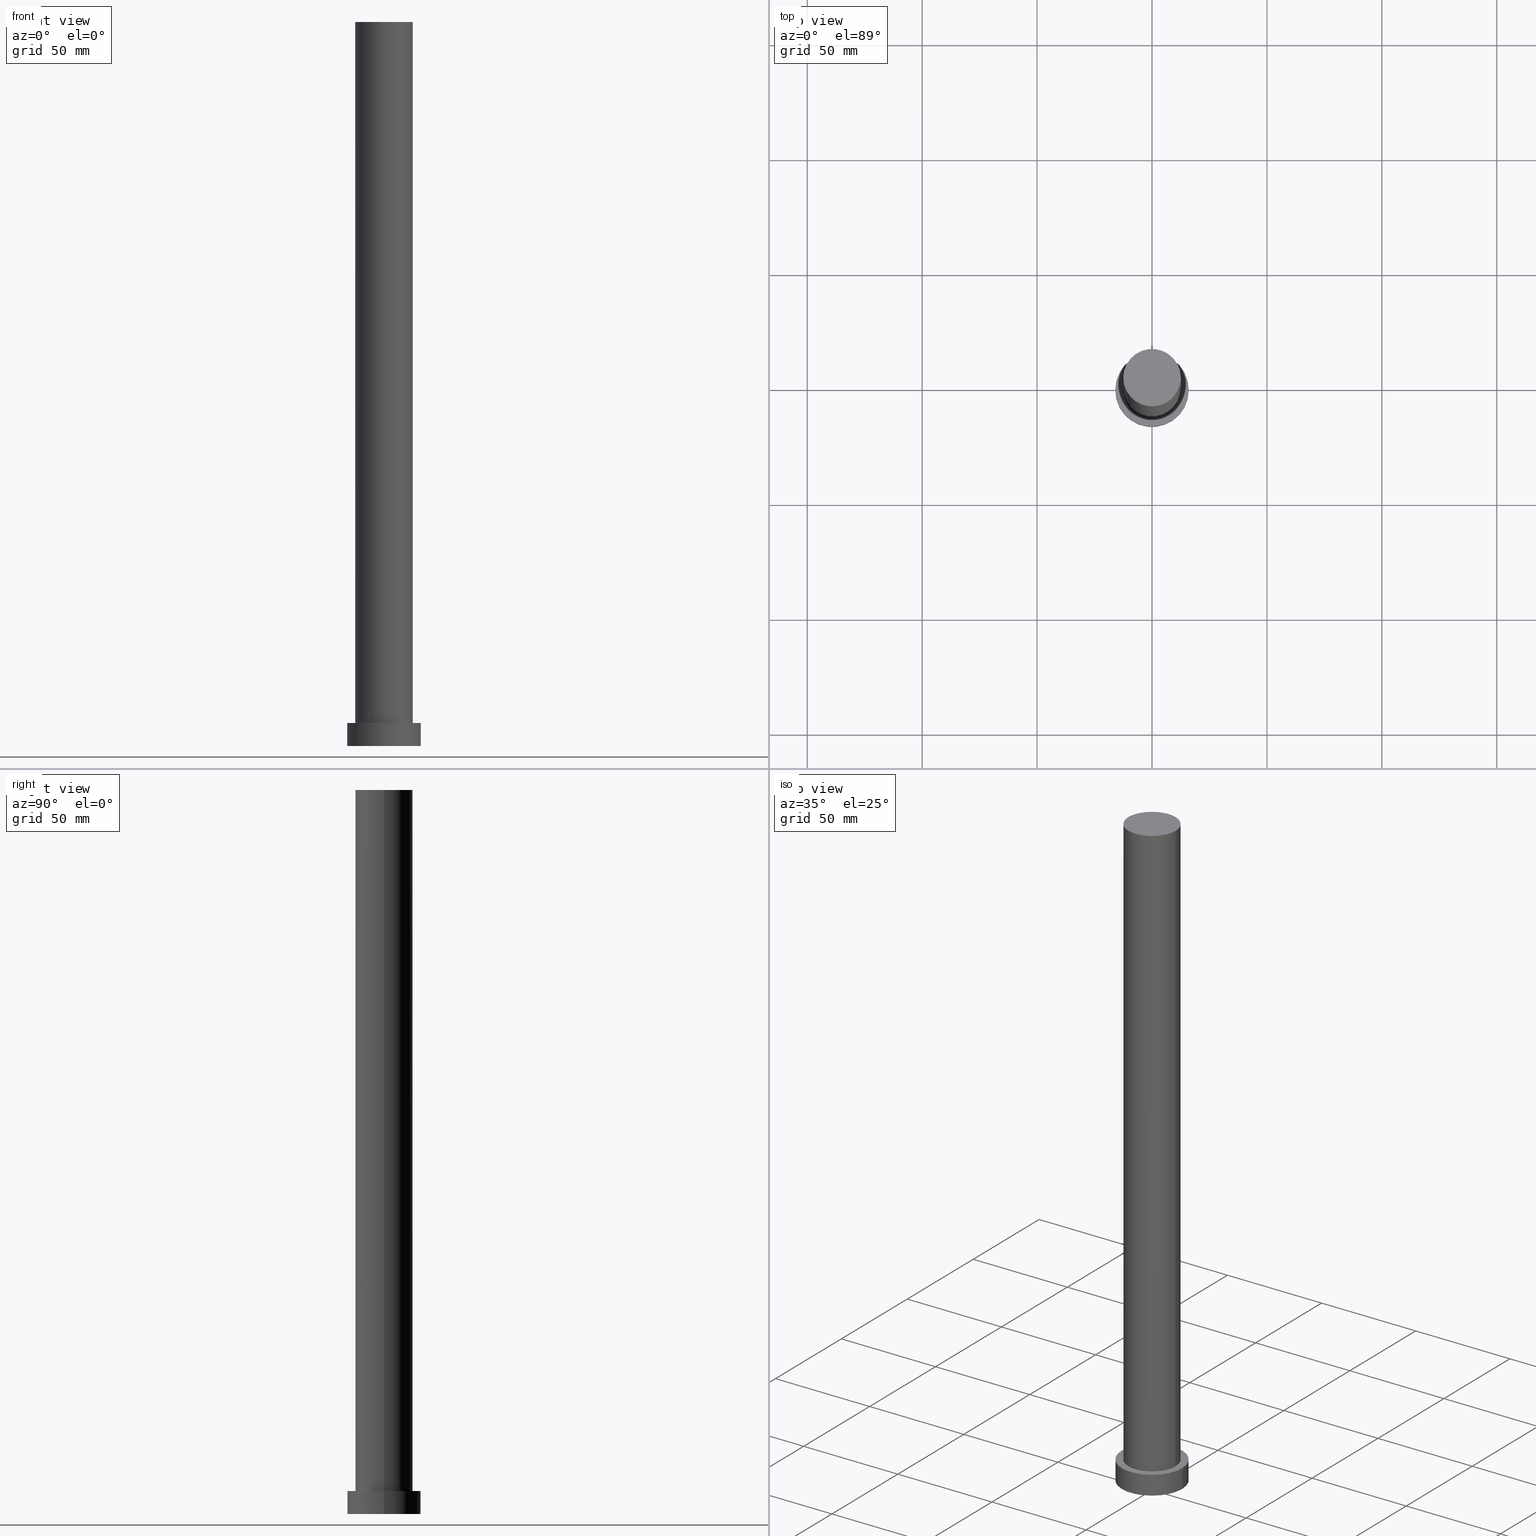
[diagram: canonical four-view strip — front | top / right | iso, engineering-drawing reading convention]
A machine part, canonical four-view strip (front | top / right | iso — engineering-drawing reading convention). The complete STEP part file that produces these views, byte-faithful:
ISO-10303-21;
HEADER;
FILE_DESCRIPTION (( 'STEP AP203' ),
    '1' );
FILE_NAME ('2f4d.STEP',
    '2023-02-13T07:32:04',
    ( '' ),
    ( '' ),
    'SwSTEP 2.0',
    'SolidWorks 2019',
    '' );
FILE_SCHEMA (( 'CONFIG_CONTROL_DESIGN' ));
ENDSEC;

DATA;
#1 = DIRECTION ( 'NONE',  ( 1.000000000000000000, 0.000000000000000000, 0.000000000000000000 ) ) ;
#2 = CALENDAR_DATE ( 2023, 13, 2 ) ;
#3 = ORGANIZATION ( 'NEUR�EN�', 'NEUR�EN�', '' ) ;
#4 = CARTESIAN_POINT ( 'NONE',  ( 16.00000000000000000, 1.959434878635765131E-15, 0.000000000000000000 ) ) ;
#5 = APPROVAL_ROLE ( '' ) ;
#6 = UNCERTAINTY_MEASURE_WITH_UNIT (LENGTH_MEASURE( 1.000000000000000082E-05 ), #196, 'distance_accuracy_value', 'NONE');
#7 = DIRECTION ( 'NONE',  ( 0.000000000000000000, 0.000000000000000000, 1.000000000000000000 ) ) ;
#8 = CARTESIAN_POINT ( 'NONE',  ( 0.000000000000000000, 0.000000000000000000, 10.00000000000000000 ) ) ;
#9 = CC_DESIGN_DATE_AND_TIME_ASSIGNMENT ( #94, #69, ( #47 ) ) ;
#10 = PLANE ( 'NONE',  #63 ) ;
#11 = COORDINATED_UNIVERSAL_TIME_OFFSET ( 1, 0, .AHEAD. ) ;
#12 = CYLINDRICAL_SURFACE ( 'NONE', #75, 16.00000000000000000 ) ;
#13 = FACE_OUTER_BOUND ( 'NONE', #234, .T. ) ;
#14 = VERTEX_POINT ( 'NONE', #4 ) ;
#15 = ORIENTED_EDGE ( 'NONE', *, *, #81, .F. ) ;
#16 = VERTEX_POINT ( 'NONE', #189 ) ;
#17 = MANIFOLD_SOLID_BREP ( 'P�idat vysunut�m3', #202 ) ;
#18 = AXIS2_PLACEMENT_3D ( 'NONE', #46, #192, #209 ) ;
#19 = PRODUCT_DEFINITION_SHAPE ( 'NONE', 'NONE',  #47 ) ;
#20 = APPROVAL ( #154, 'NEUR�EN�' ) ;
#21 = CARTESIAN_POINT ( 'NONE',  ( 16.00000000000000000, 1.959434878635765131E-15, 10.00000000000000000 ) ) ;
#22 = PERSON_AND_ORGANIZATION ( #114, #3 ) ;
#23 = CARTESIAN_POINT ( 'NONE',  ( 0.000000000000000000, 0.000000000000000000, 10.00000000000000000 ) ) ;
#24 = AXIS2_PLACEMENT_3D ( 'NONE', #141, #170, #210 ) ;
#25 = PERSON_AND_ORGANIZATION ( #114, #3 ) ;
#26 = DIRECTION ( 'NONE',  ( -0.000000000000000000, -0.000000000000000000, -1.000000000000000000 ) ) ;
#27 = CARTESIAN_POINT ( 'NONE',  ( 12.50000000000000000, 1.530808498934191521E-15, 315.0000000000000000 ) ) ;
#28 = CARTESIAN_POINT ( 'NONE',  ( -12.50000000000000000, 0.000000000000000000, 315.0000000000000000 ) ) ;
#29 = ADVANCED_FACE ( 'NONE', ( #244 ), #168, .T. ) ;
#30 = DIRECTION ( 'NONE',  ( 0.000000000000000000, 0.000000000000000000, 1.000000000000000000 ) ) ;
#31 = PRODUCT_DEFINITION_FORMATION_WITH_SPECIFIED_SOURCE ( 'LIBOVOLN�', '', #206, .NOT_KNOWN. ) ;
#32 = CIRCLE ( 'NONE', #128, 12.50000000000000000 ) ;
#33 = APPROVAL_STATUS ( 'not_yet_approved' ) ;
#34 = VECTOR ( 'NONE', #58, 1000.000000000000000 ) ;
#35 = ORIENTED_EDGE ( 'NONE', *, *, #74, .F. ) ;
#36 = ORIENTED_EDGE ( 'NONE', *, *, #101, .T. ) ;
#37 = ORIENTED_EDGE ( 'NONE', *, *, #150, .T. ) ;
#38 = AXIS2_PLACEMENT_3D ( 'NONE', #140, #53, #1 ) ;
#39 = EDGE_CURVE ( 'NONE', #183, #14, #76, .T. ) ;
#40 = CC_DESIGN_PERSON_AND_ORGANIZATION_ASSIGNMENT ( #112, #169, ( #31 ) ) ;
#41 = VERTEX_POINT ( 'NONE', #73 ) ;
#42 = AXIS2_PLACEMENT_3D ( 'NONE', #56, #143, #232 ) ;
#43 = CC_DESIGN_APPROVAL ( #133, ( #109 ) ) ;
#44 = DIRECTION ( 'NONE',  ( 1.000000000000000000, 0.000000000000000000, 0.000000000000000000 ) ) ;
#45 = CALENDAR_DATE ( 2023, 13, 2 ) ;
#46 = CARTESIAN_POINT ( 'NONE',  ( 0.000000000000000000, 0.000000000000000000, 10.00000000000000000 ) ) ;
#47 = PRODUCT_DEFINITION ( 'NEZN�M�', '', #31, #212 ) ;
#48 = PERSON_AND_ORGANIZATION_ROLE ( 'design_supplier' ) ;
#49 = FACE_OUTER_BOUND ( 'NONE', #134, .T. ) ;
#50 = ADVANCED_FACE ( 'NONE', ( #167 ), #152, .F. ) ;
#51 = SECURITY_CLASSIFICATION_LEVEL ( 'unclassified' ) ;
#52 = LOCAL_TIME ( 8, 32, 4.000000000000000000, #118 ) ;
#53 = DIRECTION ( 'NONE',  ( 0.000000000000000000, 0.000000000000000000, 1.000000000000000000 ) ) ;
#54 = EDGE_CURVE ( 'NONE', #83, #198, #113, .T. ) ;
#55 = CARTESIAN_POINT ( 'NONE',  ( -16.00000000000000000, 0.000000000000000000, 10.00000000000000000 ) ) ;
#56 = CARTESIAN_POINT ( 'NONE',  ( 0.000000000000000000, 0.000000000000000000, 10.00000000000000000 ) ) ;
#57 = APPLICATION_PROTOCOL_DEFINITION ( 'international standard', 'config_control_design', 1994, #120 ) ;
#58 = DIRECTION ( 'NONE',  ( -0.000000000000000000, -0.000000000000000000, -1.000000000000000000 ) ) ;
#59 = ADVANCED_FACE ( 'NONE', ( #172 ), #91, .T. ) ;
#60 = CARTESIAN_POINT ( 'NONE',  ( 0.000000000000000000, 0.000000000000000000, 315.0000000000000000 ) ) ;
#61 = EDGE_LOOP ( 'NONE', ( #250, #15, #204, #253 ) ) ;
#62 = CC_DESIGN_PERSON_AND_ORGANIZATION_ASSIGNMENT ( #156, #135, ( #47 ) ) ;
#63 = AXIS2_PLACEMENT_3D ( 'NONE', #60, #97, #142 ) ;
#64 = AXIS2_PLACEMENT_3D ( 'NONE', #213, #228, #238 ) ;
#65 = ORIENTED_EDGE ( 'NONE', *, *, #103, .F. ) ;
#66 = DIRECTION ( 'NONE',  ( 0.000000000000000000, 0.000000000000000000, 1.000000000000000000 ) ) ;
#67 = LOCAL_TIME ( 8, 32, 4.000000000000000000, #224 ) ;
#68 = CC_DESIGN_DATE_AND_TIME_ASSIGNMENT ( #173, #219, ( #109 ) ) ;
#69 = DATE_TIME_ROLE ( 'creation_date' ) ;
#70 = DIRECTION ( 'NONE',  ( 1.000000000000000000, 0.000000000000000000, 0.000000000000000000 ) ) ;
#71 = DATE_AND_TIME ( #138, #251 ) ;
#72 = DIRECTION ( 'NONE',  ( 0.000000000000000000, 0.000000000000000000, 1.000000000000000000 ) ) ;
#73 = CARTESIAN_POINT ( 'NONE',  ( -12.50000000000000000, 0.000000000000000000, 315.0000000000000000 ) ) ;
#74 = EDGE_CURVE ( 'NONE', #41, #87, #221, .T. ) ;
#75 = AXIS2_PLACEMENT_3D ( 'NONE', #230, #182, #121 ) ;
#76 = LINE ( 'NONE', #21, #179 ) ;
#77 = CARTESIAN_POINT ( 'NONE',  ( 12.50000000000000000, 1.530808498934191521E-15, 10.00000000000000000 ) ) ;
#78 = FACE_OUTER_BOUND ( 'NONE', #61, .T. ) ;
#79 = PRODUCT_RELATED_PRODUCT_CATEGORY ( 'detail', '', ( #206 ) ) ;
#80 = APPROVAL_PERSON_ORGANIZATION ( #215, #89, #125 ) ;
#81 = EDGE_CURVE ( 'NONE', #83, #183, #148, .T. ) ;
#82 =( NAMED_UNIT ( * ) SI_UNIT ( $, .STERADIAN. ) SOLID_ANGLE_UNIT ( ) );
#83 = VERTEX_POINT ( 'NONE', #55 ) ;
#84 = AXIS2_PLACEMENT_3D ( 'NONE', #174, #242, #240 ) ;
#85 = EDGE_LOOP ( 'NONE', ( #236, #36, #165, #218 ) ) ;
#86 = APPROVAL_PERSON_ORGANIZATION ( #190, #133, #5 ) ;
#87 = VERTEX_POINT ( 'NONE', #222 ) ;
#88 = DIRECTION ( 'NONE',  ( 1.000000000000000000, 0.000000000000000000, -0.000000000000000000 ) ) ;
#89 = APPROVAL ( #33, 'NEUR�EN�' ) ;
#90 = PERSON_AND_ORGANIZATION_ROLE ( 'classification_officer' ) ;
#91 = CYLINDRICAL_SURFACE ( 'NONE', #84, 12.50000000000000000 ) ;
#92 = COORDINATED_UNIVERSAL_TIME_OFFSET ( 1, 0, .AHEAD. ) ;
#93 = DIRECTION ( 'NONE',  ( -0.000000000000000000, -0.000000000000000000, -1.000000000000000000 ) ) ;
#94 = DATE_AND_TIME ( #2, #175 ) ;
#95 = DIRECTION ( 'NONE',  ( 0.000000000000000000, 0.000000000000000000, 1.000000000000000000 ) ) ;
#96 = APPLICATION_PROTOCOL_DEFINITION ( 'international standard', 'config_control_design', 1994, #124 ) ;
#97 = DIRECTION ( 'NONE',  ( 0.000000000000000000, 0.000000000000000000, 1.000000000000000000 ) ) ;
#98 = CC_DESIGN_PERSON_AND_ORGANIZATION_ASSIGNMENT ( #246, #229, ( #206 ) ) ;
#99 = CARTESIAN_POINT ( 'NONE',  ( -16.00000000000000000, 0.000000000000000000, 0.000000000000000000 ) ) ;
#100 = CC_DESIGN_APPROVAL ( #20, ( #31 ) ) ;
#101 = EDGE_CURVE ( 'NONE', #87, #203, #111, .T. ) ;
#102 = CARTESIAN_POINT ( 'NONE',  ( 0.000000000000000000, 0.000000000000000000, 0.000000000000000000 ) ) ;
#103 = EDGE_CURVE ( 'NONE', #16, #203, #32, .T. ) ;
#104 = CC_DESIGN_PERSON_AND_ORGANIZATION_ASSIGNMENT ( #22, #48, ( #31 ) ) ;
#105 = ORIENTED_EDGE ( 'NONE', *, *, #101, .F. ) ;
#106 = EDGE_LOOP ( 'NONE', ( #105, #35, #107, #252 ) ) ;
#107 = ORIENTED_EDGE ( 'NONE', *, *, #255, .T. ) ;
#108 = EDGE_CURVE ( 'NONE', #14, #198, #132, .T. ) ;
#109 = SECURITY_CLASSIFICATION ( '', '', #51 ) ;
#110 = APPROVAL_DATE_TIME ( #208, #20 ) ;
#111 = LINE ( 'NONE', #27, #123 ) ;
#112 = PERSON_AND_ORGANIZATION ( #114, #3 ) ;
#113 = LINE ( 'NONE', #223, #211 ) ;
#114 = PERSON ( 'NEUR�EN�', 'NEUR�EN�', 'NEUR�EN�', ('NEUR�EN�'), ('NEUR�EN�'), ('NEUR�EN�') ) ;
#115 = PERSON_AND_ORGANIZATION ( #114, #3 ) ;
#116 = CARTESIAN_POINT ( 'NONE',  ( 0.000000000000000000, 0.000000000000000000, 315.0000000000000000 ) ) ;
#117 = CIRCLE ( 'NONE', #247, 16.00000000000000000 ) ;
#118 = COORDINATED_UNIVERSAL_TIME_OFFSET ( 1, 0, .AHEAD. ) ;
#119 = DIRECTION ( 'NONE',  ( 0.000000000000000000, 0.000000000000000000, 1.000000000000000000 ) ) ;
#120 = APPLICATION_CONTEXT ( 'configuration controlled 3d designs of mechanical parts and assemblies' ) ;
#121 = DIRECTION ( 'NONE',  ( -1.000000000000000000, 0.000000000000000000, 0.000000000000000000 ) ) ;
#122 = AXIS2_PLACEMENT_3D ( 'NONE', #116, #72, #137 ) ;
#123 = VECTOR ( 'NONE', #191, 1000.000000000000000 ) ;
#124 = APPLICATION_CONTEXT ( 'configuration controlled 3d designs of mechanical parts and assemblies' ) ;
#125 = APPROVAL_ROLE ( '' ) ;
#126 = EDGE_LOOP ( 'NONE', ( #254, #186, #217, #129 ) ) ;
#127 = ORIENTED_EDGE ( 'NONE', *, *, #149, .F. ) ;
#128 = AXIS2_PLACEMENT_3D ( 'NONE', #23, #159, #70 ) ;
#129 = ORIENTED_EDGE ( 'NONE', *, *, #54, .F. ) ;
#130 = ORIENTED_EDGE ( 'NONE', *, *, #81, .T. ) ;
#131 = CIRCLE ( 'NONE', #122, 12.50000000000000000 ) ;
#132 = CIRCLE ( 'NONE', #38, 16.00000000000000000 ) ;
#133 = APPROVAL ( #158, 'NEUR�EN�' ) ;
#134 = EDGE_LOOP ( 'NONE', ( #227, #200 ) ) ;
#135 = PERSON_AND_ORGANIZATION_ROLE ( 'creator' ) ;
#136 = AXIS2_PLACEMENT_3D ( 'NONE', #243, #66, #187 ) ;
#137 = DIRECTION ( 'NONE',  ( 1.000000000000000000, 0.000000000000000000, 0.000000000000000000 ) ) ;
#138 = CALENDAR_DATE ( 2023, 13, 2 ) ;
#139 = COORDINATED_UNIVERSAL_TIME_OFFSET ( 1, 0, .AHEAD. ) ;
#140 = CARTESIAN_POINT ( 'NONE',  ( 0.000000000000000000, 0.000000000000000000, 0.000000000000000000 ) ) ;
#141 = CARTESIAN_POINT ( 'NONE',  ( 0.000000000000000000, 0.000000000000000000, 315.0000000000000000 ) ) ;
#142 = DIRECTION ( 'NONE',  ( 1.000000000000000000, 0.000000000000000000, -0.000000000000000000 ) ) ;
#143 = DIRECTION ( 'NONE',  ( -0.000000000000000000, -0.000000000000000000, -1.000000000000000000 ) ) ;
#144 = FACE_OUTER_BOUND ( 'NONE', #126, .T. ) ;
#145 = EDGE_LOOP ( 'NONE', ( #65, #164 ) ) ;
#146 = EDGE_LOOP ( 'NONE', ( #127, #235 ) ) ;
#147 = CC_DESIGN_APPROVAL ( #89, ( #47 ) ) ;
#148 = CIRCLE ( 'NONE', #136, 16.00000000000000000 ) ;
#149 = EDGE_CURVE ( 'NONE', #198, #14, #117, .T. ) ;
#150 = EDGE_CURVE ( 'NONE', #183, #83, #181, .T. ) ;
#151 = CALENDAR_DATE ( 2023, 13, 2 ) ;
#152 = PLANE ( 'NONE',  #237 ) ;
#153 = AXIS2_PLACEMENT_3D ( 'NONE', #102, #162, #214 ) ;
#154 = APPROVAL_STATUS ( 'not_yet_approved' ) ;
#155 = CARTESIAN_POINT ( 'NONE',  ( 0.000000000000000000, 0.000000000000000000, 0.000000000000000000 ) ) ;
#156 = PERSON_AND_ORGANIZATION ( #114, #3 ) ;
#157 = CARTESIAN_POINT ( 'NONE',  ( 0.000000000000000000, 0.000000000000000000, 10.00000000000000000 ) ) ;
#158 = APPROVAL_STATUS ( 'not_yet_approved' ) ;
#159 = DIRECTION ( 'NONE',  ( 0.000000000000000000, 0.000000000000000000, 1.000000000000000000 ) ) ;
#160 = CARTESIAN_POINT ( 'NONE',  ( 0.000000000000000000, 0.000000000000000000, 0.000000000000000000 ) ) ;
#161 =( NAMED_UNIT ( * ) PLANE_ANGLE_UNIT ( ) SI_UNIT ( $, .RADIAN. ) );
#162 = DIRECTION ( 'NONE',  ( 0.000000000000000000, 0.000000000000000000, 1.000000000000000000 ) ) ;
#163 = PLANE ( 'NONE',  #201 ) ;
#164 = ORIENTED_EDGE ( 'NONE', *, *, #177, .F. ) ;
#165 = ORIENTED_EDGE ( 'NONE', *, *, #177, .T. ) ;
#166 = EDGE_CURVE ( 'NONE', #87, #41, #131, .T. ) ;
#167 = FACE_OUTER_BOUND ( 'NONE', #146, .T. ) ;
#168 = CYLINDRICAL_SURFACE ( 'NONE', #24, 12.50000000000000000 ) ;
#169 = PERSON_AND_ORGANIZATION_ROLE ( 'creator' ) ;
#170 = DIRECTION ( 'NONE',  ( -0.000000000000000000, -0.000000000000000000, -1.000000000000000000 ) ) ;
#171 = APPROVAL_DATE_TIME ( #220, #133 ) ;
#172 = FACE_OUTER_BOUND ( 'NONE', #85, .T. ) ;
#173 = DATE_AND_TIME ( #241, #52 ) ;
#174 = CARTESIAN_POINT ( 'NONE',  ( 0.000000000000000000, 0.000000000000000000, 315.0000000000000000 ) ) ;
#175 = LOCAL_TIME ( 8, 32, 4.000000000000000000, #139 ) ;
#176 = CC_DESIGN_SECURITY_CLASSIFICATION ( #109, ( #31 ) ) ;
#177 = EDGE_CURVE ( 'NONE', #203, #16, #239, .T. ) ;
#178 = CYLINDRICAL_SURFACE ( 'NONE', #42, 16.00000000000000000 ) ;
#179 = VECTOR ( 'NONE', #26, 1000.000000000000000 ) ;
#180 = AXIS2_PLACEMENT_3D ( 'NONE', #157, #7, #207 ) ;
#181 = CIRCLE ( 'NONE', #18, 16.00000000000000000 ) ;
#182 = DIRECTION ( 'NONE',  ( -0.000000000000000000, -0.000000000000000000, -1.000000000000000000 ) ) ;
#183 = VERTEX_POINT ( 'NONE', #225 ) ;
#184 = ADVANCED_BREP_SHAPE_REPRESENTATION ( '2f4d', ( #17, #153 ), #195 ) ;
#185 = APPROVAL_PERSON_ORGANIZATION ( #25, #20, #205 ) ;
#186 = ORIENTED_EDGE ( 'NONE', *, *, #39, .T. ) ;
#187 = DIRECTION ( 'NONE',  ( 1.000000000000000000, 0.000000000000000000, 0.000000000000000000 ) ) ;
#188 = APPROVAL_DATE_TIME ( #71, #89 ) ;
#189 = CARTESIAN_POINT ( 'NONE',  ( -12.50000000000000000, 0.000000000000000000, 10.00000000000000000 ) ) ;
#190 = PERSON_AND_ORGANIZATION ( #114, #3 ) ;
#191 = DIRECTION ( 'NONE',  ( -0.000000000000000000, -0.000000000000000000, -1.000000000000000000 ) ) ;
#192 = DIRECTION ( 'NONE',  ( 0.000000000000000000, 0.000000000000000000, 1.000000000000000000 ) ) ;
#193 = ADVANCED_FACE ( 'NONE', ( #49 ), #10, .T. ) ;
#194 = CC_DESIGN_PERSON_AND_ORGANIZATION_ASSIGNMENT ( #115, #90, ( #109 ) ) ;
#195 =( GEOMETRIC_REPRESENTATION_CONTEXT ( 3 ) GLOBAL_UNCERTAINTY_ASSIGNED_CONTEXT ( ( #6 ) ) GLOBAL_UNIT_ASSIGNED_CONTEXT ( ( #196, #161, #82 ) ) REPRESENTATION_CONTEXT ( 'NONE', 'WORKASPACE' ) );
#196 =( LENGTH_UNIT ( ) NAMED_UNIT ( * ) SI_UNIT ( .MILLI., .METRE. ) );
#197 = MECHANICAL_CONTEXT ( 'NONE', #124, 'mechanical' ) ;
#198 = VERTEX_POINT ( 'NONE', #99 ) ;
#199 = ADVANCED_FACE ( 'NONE', ( #78 ), #12, .T. ) ;
#200 = ORIENTED_EDGE ( 'NONE', *, *, #166, .T. ) ;
#201 = AXIS2_PLACEMENT_3D ( 'NONE', #8, #30, #231 ) ;
#202 = CLOSED_SHELL ( 'NONE', ( #59, #249, #199, #233, #50, #29, #193 ) ) ;
#203 = VERTEX_POINT ( 'NONE', #77 ) ;
#204 = ORIENTED_EDGE ( 'NONE', *, *, #54, .T. ) ;
#205 = APPROVAL_ROLE ( '' ) ;
#206 = PRODUCT ( '2f4d', '2f4d', '', ( #197 ) ) ;
#207 = DIRECTION ( 'NONE',  ( 1.000000000000000000, 0.000000000000000000, 0.000000000000000000 ) ) ;
#208 = DATE_AND_TIME ( #45, #67 ) ;
#209 = DIRECTION ( 'NONE',  ( 1.000000000000000000, 0.000000000000000000, 0.000000000000000000 ) ) ;
#210 = DIRECTION ( 'NONE',  ( -1.000000000000000000, 0.000000000000000000, 0.000000000000000000 ) ) ;
#211 = VECTOR ( 'NONE', #93, 1000.000000000000000 ) ;
#212 = DESIGN_CONTEXT ( 'detailed design', #120, 'design' ) ;
#213 = CARTESIAN_POINT ( 'NONE',  ( 0.000000000000000000, 0.000000000000000000, 315.0000000000000000 ) ) ;
#214 = DIRECTION ( 'NONE',  ( 1.000000000000000000, 0.000000000000000000, 0.000000000000000000 ) ) ;
#215 = PERSON_AND_ORGANIZATION ( #114, #3 ) ;
#216 = LINE ( 'NONE', #28, #34 ) ;
#217 = ORIENTED_EDGE ( 'NONE', *, *, #108, .T. ) ;
#218 = ORIENTED_EDGE ( 'NONE', *, *, #255, .F. ) ;
#219 = DATE_TIME_ROLE ( 'classification_date' ) ;
#220 = DATE_AND_TIME ( #151, #245 ) ;
#221 = CIRCLE ( 'NONE', #64, 12.50000000000000000 ) ;
#222 = CARTESIAN_POINT ( 'NONE',  ( 12.50000000000000000, 1.530808498934191521E-15, 315.0000000000000000 ) ) ;
#223 = CARTESIAN_POINT ( 'NONE',  ( -16.00000000000000000, 0.000000000000000000, 10.00000000000000000 ) ) ;
#224 = COORDINATED_UNIVERSAL_TIME_OFFSET ( 1, 0, .AHEAD. ) ;
#225 = CARTESIAN_POINT ( 'NONE',  ( 16.00000000000000000, 1.959434878635765131E-15, 10.00000000000000000 ) ) ;
#226 = SHAPE_DEFINITION_REPRESENTATION ( #19, #184 ) ;
#227 = ORIENTED_EDGE ( 'NONE', *, *, #74, .T. ) ;
#228 = DIRECTION ( 'NONE',  ( 0.000000000000000000, 0.000000000000000000, 1.000000000000000000 ) ) ;
#229 = PERSON_AND_ORGANIZATION_ROLE ( 'design_owner' ) ;
#230 = CARTESIAN_POINT ( 'NONE',  ( 0.000000000000000000, 0.000000000000000000, 10.00000000000000000 ) ) ;
#231 = DIRECTION ( 'NONE',  ( 1.000000000000000000, 0.000000000000000000, -0.000000000000000000 ) ) ;
#232 = DIRECTION ( 'NONE',  ( -1.000000000000000000, 0.000000000000000000, 0.000000000000000000 ) ) ;
#233 = ADVANCED_FACE ( 'NONE', ( #248, #13 ), #163, .T. ) ;
#234 = EDGE_LOOP ( 'NONE', ( #130, #37 ) ) ;
#235 = ORIENTED_EDGE ( 'NONE', *, *, #108, .F. ) ;
#236 = ORIENTED_EDGE ( 'NONE', *, *, #166, .F. ) ;
#237 = AXIS2_PLACEMENT_3D ( 'NONE', #160, #95, #88 ) ;
#238 = DIRECTION ( 'NONE',  ( 1.000000000000000000, 0.000000000000000000, 0.000000000000000000 ) ) ;
#239 = CIRCLE ( 'NONE', #180, 12.50000000000000000 ) ;
#240 = DIRECTION ( 'NONE',  ( -1.000000000000000000, 0.000000000000000000, 0.000000000000000000 ) ) ;
#241 = CALENDAR_DATE ( 2023, 13, 2 ) ;
#242 = DIRECTION ( 'NONE',  ( -0.000000000000000000, -0.000000000000000000, -1.000000000000000000 ) ) ;
#243 = CARTESIAN_POINT ( 'NONE',  ( 0.000000000000000000, 0.000000000000000000, 10.00000000000000000 ) ) ;
#244 = FACE_OUTER_BOUND ( 'NONE', #106, .T. ) ;
#245 = LOCAL_TIME ( 8, 32, 4.000000000000000000, #92 ) ;
#246 = PERSON_AND_ORGANIZATION ( #114, #3 ) ;
#247 = AXIS2_PLACEMENT_3D ( 'NONE', #155, #119, #44 ) ;
#248 = FACE_BOUND ( 'NONE', #145, .T. ) ;
#249 = ADVANCED_FACE ( 'NONE', ( #144 ), #178, .T. ) ;
#250 = ORIENTED_EDGE ( 'NONE', *, *, #39, .F. ) ;
#251 = LOCAL_TIME ( 8, 32, 4.000000000000000000, #11 ) ;
#252 = ORIENTED_EDGE ( 'NONE', *, *, #103, .T. ) ;
#253 = ORIENTED_EDGE ( 'NONE', *, *, #149, .T. ) ;
#254 = ORIENTED_EDGE ( 'NONE', *, *, #150, .F. ) ;
#255 = EDGE_CURVE ( 'NONE', #41, #16, #216, .T. ) ;
ENDSEC;
END-ISO-10303-21;
